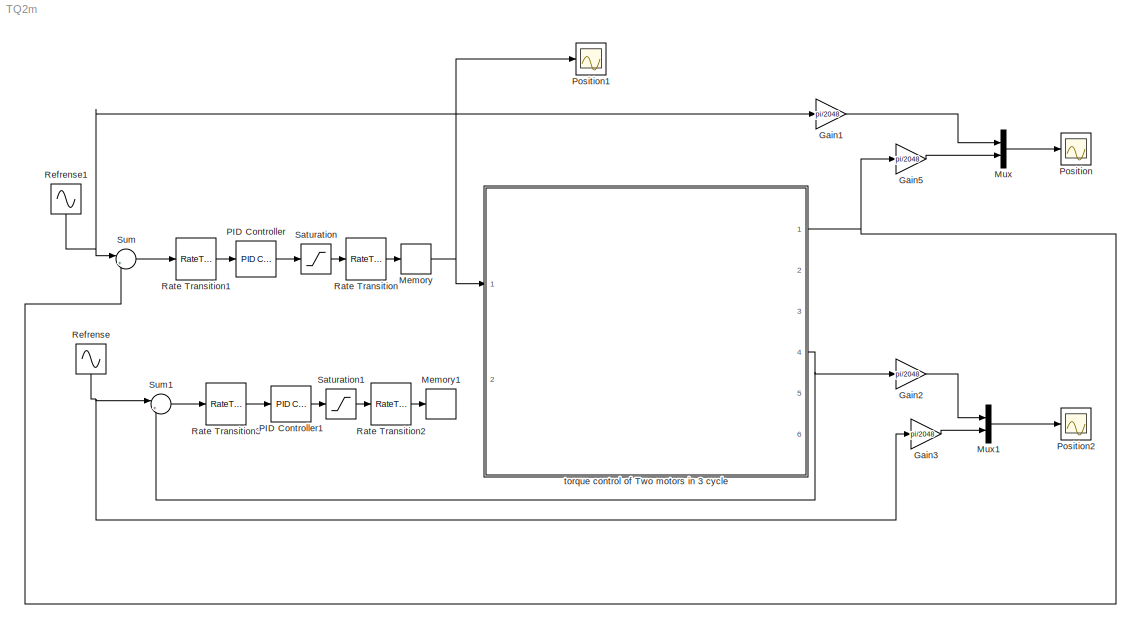
MODEL TQ2m
KIND model
BLOCK [Gain] Gain1
  Gain = pi/2048
  OutDataTypeStr = Inherit: Inherit via internal rule
  ParamDataTypeStr = Inherit: Inherit via internal rule
  SID = 82
  SaturateOnIntegerOverflow = off
BLOCK [Gain] Gain2
  Gain = pi/2048
  OutDataTypeStr = Inherit: Inherit via internal rule
  ParamDataTypeStr = Inherit: Inherit via internal rule
  SID = 122
  SaturateOnIntegerOverflow = off
BLOCK [Gain] Gain3
  Gain = pi/2048
  OutDataTypeStr = Inherit: Inherit via internal rule
  ParamDataTypeStr = Inherit: Inherit via internal rule
  SID = 83
  SaturateOnIntegerOverflow = off
BLOCK [Gain] Gain5
  Gain = pi/2048
  OutDataTypeStr = Inherit: Inherit via internal rule
  ParamDataTypeStr = Inherit: Inherit via internal rule
  SID = 84
  SaturateOnIntegerOverflow = off
BLOCK [Memory] Memory
  SID = 104
BLOCK [Memory] Memory1
  SID = 105
BLOCK [Mux] Mux
  DisplayOption = bar
  Inputs = 2
  Ports = [2, 1]
  SID = 106
BLOCK [Mux] Mux1
  DisplayOption = bar
  Inputs = 2
  Ports = [2, 1]
  SID = 107
BLOCK [Reference] PID Controller  REF=simulink/Continuous/PID Controller
  AntiWindupMode = none
  Controller = PID
  D = 0.00005
  DOutDataTypeStr = Inherit: Inherit via internal rule
  DOutMax = []
  DOutMin = []
  DParamDataTypeStr = Inherit: Inherit via internal rule
  DParamMax = []
  DParamMin = []
  ExternalReset = none
  FilterContinuousStateAttributes = ''
  FilterMethod = Forward Euler
  FilterOutDataTypeStr = Inherit: Inherit via internal rule
  FilterOutMax = []
  FilterOutMin = []
  FilterRTWStateStorageClass = Auto
  FilterStateMustResolveToSignalObject = off
  Form = Parallel
  I = 0.01
  IOutDataTypeStr = Inherit: Inherit via internal rule
  IOutMax = []
  IOutMin = []
  IParamDataTypeStr = Inherit: Inherit via internal rule
  IParamMax = []
  IParamMin = []
  IgnoreLimit = off
  InitialConditionForFilter = 0
  InitialConditionForIntegrator = 0
  InitialConditionSource = internal
  IntegratorContinuousStateAttributes = ''
  IntegratorMethod = Forward Euler
  IntegratorOutDataTypeStr = Inherit: Inherit via internal rule
  IntegratorOutMax = []
  IntegratorOutMin = []
  IntegratorRTWStateStorageClass = Auto
  IntegratorStateMustResolveToSignalObject = off
  Kb = 1
  KbOutDataTypeStr = Inherit: Inherit via internal rule
  KbOutMax = []
  KbOutMin = []
  KbParamDataTypeStr = Inherit: Inherit via internal rule
  KbParamMax = []
  KbParamMin = []
  Kt = 1
  KtOutDataTypeStr = Inherit: Inherit via internal rule
  KtOutMax = []
  KtOutMin = []
  KtParamDataTypeStr = Inherit: Inherit via internal rule
  KtParamMax = []
  KtParamMin = []
  LimitOutput = off
  LinearizeAsGain = on
  LockScale = off
  LowerSaturationLimit = -inf
  N = 100
  NOutDataTypeStr = Inherit: Inherit via internal rule
  NOutMax = []
  NOutMin = []
  NParamDataTypeStr = Inherit: Inherit via internal rule
  NParamMax = []
  NParamMin = []
  P = 0.002
  POutDataTypeStr = Inherit: Inherit via internal rule
  POutMax = []
  POutMin = []
  PParamDataTypeStr = Inherit: Inherit via internal rule
  PParamMax = []
  PParamMin = []
  Ports = [1, 1]
  RndMeth = Floor
  SID = 108
  SampleTime = 0.01
  SaturateOnIntegerOverflow = off
  SaturationOutDataTypeStr = Inherit: Same as input
  SaturationOutMax = []
  SaturationOutMin = []
  SourceBlock = simulink/Continuous/PID Controller
  SourceType = PID 1dof
  SumAccumDataTypeStr = Inherit: Inherit via internal rule
  SumDAccumDataTypeStr = Inherit: Inherit via internal rule
  SumDOutDataTypeStr = Inherit: Inherit via internal rule
  SumDOutMax = []
  SumDOutMin = []
  SumI1AccumDataTypeStr = Inherit: Inherit via internal rule
  SumI1OutDataTypeStr = Inherit: Inherit via internal rule
  SumI1OutMax = []
  SumI1OutMin = []
  SumI2AccumDataTypeStr = Inherit: Inherit via internal rule
  SumI2OutDataTypeStr = Inherit: Inherit via internal rule
  SumI2OutMax = []
  SumI2OutMin = []
  SumI3AccumDataTypeStr = Inherit: Inherit via internal rule
  SumI3OutDataTypeStr = Inherit: Inherit via internal rule
  SumI3OutMax = []
  SumI3OutMin = []
  SumOutDataTypeStr = Inherit: Inherit via internal rule
  SumOutMax = []
  SumOutMin = []
  TimeDomain = Discrete-time
  TrackingMode = off
  UpperSaturationLimit = inf
  ZeroCross = on
BLOCK [Reference] PID Controller1  REF=simulink/Continuous/PID Controller
  AntiWindupMode = none
  Controller = PID
  D = 0.00005
  DOutDataTypeStr = Inherit: Inherit via internal rule
  DOutMax = []
  DOutMin = []
  DParamDataTypeStr = Inherit: Inherit via internal rule
  DParamMax = []
  DParamMin = []
  ExternalReset = none
  FilterContinuousStateAttributes = ''
  FilterMethod = Forward Euler
  FilterOutDataTypeStr = Inherit: Inherit via internal rule
  FilterOutMax = []
  FilterOutMin = []
  FilterRTWStateStorageClass = Auto
  FilterStateMustResolveToSignalObject = off
  Form = Parallel
  I = 0.01
  IOutDataTypeStr = Inherit: Inherit via internal rule
  IOutMax = []
  IOutMin = []
  IParamDataTypeStr = Inherit: Inherit via internal rule
  IParamMax = []
  IParamMin = []
  IgnoreLimit = off
  InitialConditionForFilter = 0
  InitialConditionForIntegrator = 0
  InitialConditionSource = internal
  IntegratorContinuousStateAttributes = ''
  IntegratorMethod = Forward Euler
  IntegratorOutDataTypeStr = Inherit: Inherit via internal rule
  IntegratorOutMax = []
  IntegratorOutMin = []
  IntegratorRTWStateStorageClass = Auto
  IntegratorStateMustResolveToSignalObject = off
  Kb = 1
  KbOutDataTypeStr = Inherit: Inherit via internal rule
  KbOutMax = []
  KbOutMin = []
  KbParamDataTypeStr = Inherit: Inherit via internal rule
  KbParamMax = []
  KbParamMin = []
  Kt = 1
  KtOutDataTypeStr = Inherit: Inherit via internal rule
  KtOutMax = []
  KtOutMin = []
  KtParamDataTypeStr = Inherit: Inherit via internal rule
  KtParamMax = []
  KtParamMin = []
  LimitOutput = off
  LinearizeAsGain = on
  LockScale = off
  LowerSaturationLimit = -inf
  N = 100
  NOutDataTypeStr = Inherit: Inherit via internal rule
  NOutMax = []
  NOutMin = []
  NParamDataTypeStr = Inherit: Inherit via internal rule
  NParamMax = []
  NParamMin = []
  P = 0.002
  POutDataTypeStr = Inherit: Inherit via internal rule
  POutMax = []
  POutMin = []
  PParamDataTypeStr = Inherit: Inherit via internal rule
  PParamMax = []
  PParamMin = []
  Ports = [1, 1]
  RndMeth = Floor
  SID = 109
  SampleTime = 0.01
  SaturateOnIntegerOverflow = off
  SaturationOutDataTypeStr = Inherit: Same as input
  SaturationOutMax = []
  SaturationOutMin = []
  SourceBlock = simulink/Continuous/PID Controller
  SourceType = PID 1dof
  SumAccumDataTypeStr = Inherit: Inherit via internal rule
  SumDAccumDataTypeStr = Inherit: Inherit via internal rule
  SumDOutDataTypeStr = Inherit: Inherit via internal rule
  SumDOutMax = []
  SumDOutMin = []
  SumI1AccumDataTypeStr = Inherit: Inherit via internal rule
  SumI1OutDataTypeStr = Inherit: Inherit via internal rule
  SumI1OutMax = []
  SumI1OutMin = []
  SumI2AccumDataTypeStr = Inherit: Inherit via internal rule
  SumI2OutDataTypeStr = Inherit: Inherit via internal rule
  SumI2OutMax = []
  SumI2OutMin = []
  SumI3AccumDataTypeStr = Inherit: Inherit via internal rule
  SumI3OutDataTypeStr = Inherit: Inherit via internal rule
  SumI3OutMax = []
  SumI3OutMin = []
  SumOutDataTypeStr = Inherit: Inherit via internal rule
  SumOutMax = []
  SumOutMin = []
  TimeDomain = Discrete-time
  TrackingMode = off
  UpperSaturationLimit = inf
  ZeroCross = on
BLOCK [Scope] Position
  DataFormat = StructureWithTime
  Floating = off
  NumInputPorts = 1
  Ports = [1]
  SID = 110
  SampleTime = 0
  SaveName = ScopeData5
  ShowLegends = off
  TimeRange = 10
  YMax = 3.9
  YMin = 2.2
  ZoomMode = yonly
BLOCK [Scope] Position1
  DataFormat = StructureWithTime
  Floating = off
  NumInputPorts = 1
  Ports = [1]
  SID = 123
  SampleTime = 0
  ShowLegends = off
  TimeRange = 10
  YMax = 0.25
  YMin = -0.3
  ZoomMode = yonly
BLOCK [Scope] Position2
  DataFormat = StructureWithTime
  Floating = off
  NumInputPorts = 1
  Ports = [1]
  SID = 111
  SampleTime = 0
  SaveName = ScopeData9
  ShowLegends = off
  TimeRange = 10
  YMax = 3.9
  YMin = 2.3
  ZoomMode = xonly
BLOCK [RateTransition] Rate Transition
  SID = 112
BLOCK [RateTransition] Rate Transition1
  OutPortSampleTime = 0.01
  SID = 113
BLOCK [RateTransition] Rate Transition2
  SID = 114
BLOCK [RateTransition] Rate Transition3
  OutPortSampleTime = 0.01
  SID = 115
BLOCK [Sin] Refrense
  Amplitude = 500
  Bias = 2000
  Frequency = 1.5
  Ports = [0, 1]
  SID = 116
BLOCK [Sin] Refrense1
  Amplitude = 500
  Bias = 2000
  Frequency = 1.5
  Ports = [0, 1]
  SID = 117
BLOCK [Saturate] Saturation
  InputPortMap = u0
  LowerLimit = -6
  Ports = [1, 1]
  SID = 118
  UpperLimit = 6
BLOCK [Saturate] Saturation1
  InputPortMap = u0
  LowerLimit = -6
  Ports = [1, 1]
  SID = 119
  UpperLimit = 6
BLOCK [Sum] Sum
  IconShape = round
  InputSameDT = off
  Inputs = |+-
  OutDataTypeStr = Inherit: Inherit via internal rule
  Ports = [2, 1]
  SID = 120
  SaturateOnIntegerOverflow = off
BLOCK [Sum] Sum1
  IconShape = round
  InputSameDT = off
  Inputs = |+-
  OutDataTypeStr = Inherit: Inherit via internal rule
  Ports = [2, 1]
  SID = 121
  SaturateOnIntegerOverflow = off
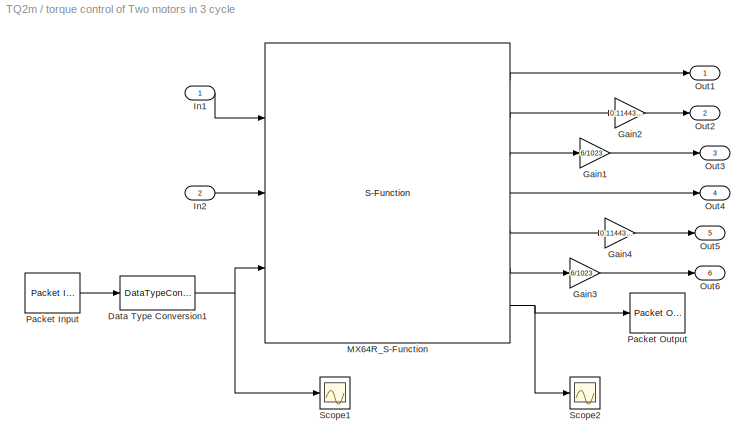
BLOCK [SubSystem] torque control of Two motors in 3 cycle
  FunctionWithSeparateData = off
  MaskHideContents = off
  MinAlgLoopOccurrences = off
  Opaque = off
  Ports = [2, 6]
  PropExecContextOutsideSubsystem = off
  RTWSystemCode = Auto
  RequestExecContextInheritance = off
  SID = 20
  TreatAsAtomicUnit = on
BLOCK [DataTypeConversion] torque control of Two motors in 3 cycle/Data Type Conversion1
  ConvertRealWorld = Stored Integer (SI)
  OutDataTypeStr = double
  RndMeth = Floor
  SID = 34
  SaturateOnIntegerOverflow = off
BLOCK [Gain] torque control of Two motors in 3 cycle/Gain1
  Gain = 6/1023
  OutDataTypeStr = Inherit: Inherit via internal rule
  ParamDataTypeStr = Inherit: Inherit via internal rule
  SID = 47
  SaturateOnIntegerOverflow = off
BLOCK [Gain] torque control of Two motors in 3 cycle/Gain2
  Gain = 0.11443333
  OutDataTypeStr = Inherit: Inherit via internal rule
  ParamDataTypeStr = Inherit: Inherit via internal rule
  SID = 57
  SaturateOnIntegerOverflow = off
BLOCK [Gain] torque control of Two motors in 3 cycle/Gain3
  Gain = 6/1023
  OutDataTypeStr = Inherit: Inherit via internal rule
  ParamDataTypeStr = Inherit: Inherit via internal rule
  SID = 68
  SaturateOnIntegerOverflow = off
BLOCK [Gain] torque control of Two motors in 3 cycle/Gain4
  Gain = 0.11443333
  OutDataTypeStr = Inherit: Inherit via internal rule
  ParamDataTypeStr = Inherit: Inherit via internal rule
  SID = 69
  SaturateOnIntegerOverflow = off
BLOCK [Inport] torque control of Two motors in 3 cycle/In1
  IconDisplay = Port number
  SID = 22
BLOCK [Inport] torque control of Two motors in 3 cycle/In2
  IconDisplay = Port number
  Port = 2
  SID = 73
BLOCK [S-Function] torque control of Two motors in 3 cycle/MX64R_S-Function
  EnableBusSupport = off
  FunctionName = MX64R_RTW_2motor
  Parameters = p1,p2
  Ports = [3, 7]
  SID = 9
BLOCK [Outport] torque control of Two motors in 3 cycle/Out1
  IconDisplay = Port number
  OutMax = [2*pi]
  OutMin = [0]
  SID = 23
BLOCK [Outport] torque control of Two motors in 3 cycle/Out2
  IconDisplay = Port number
  Port = 2
  SID = 24
BLOCK [Outport] torque control of Two motors in 3 cycle/Out3
  IconDisplay = Port number
  Port = 3
  SID = 39
BLOCK [Outport] torque control of Two motors in 3 cycle/Out4
  IconDisplay = Port number
  OutMax = [2*pi]
  OutMin = [0]
  Port = 4
  SID = 70
BLOCK [Outport] torque control of Two motors in 3 cycle/Out5
  IconDisplay = Port number
  Port = 5
  SID = 71
BLOCK [Outport] torque control of Two motors in 3 cycle/Out6
  IconDisplay = Port number
  Port = 6
  SID = 72
BLOCK [Reference] torque control of Two motors in 3 cycle/Packet Input  REF=rtwinlib/Packet Input
  AttributesFormatString = Standard Devices\\nSerial Port [3h]
  ByteOrder = 1
  DataTypes = '12*uint8'
  DrvAddress = 3
  DrvName = Standard_Devices/Serial_Port
  DrvOptions = [3000000 8 0 0 0 1 0 0]
  MaxMissedTicks = 25
  PacketID = 1
  PacketSize = 12
  Ports = [0, 1]
  SID = 18
  SampleTime = -1
  ShowError = off
  ShowMissedTicks = off
  ShowReady = off
  ShowTimestamp = off
  SourceBlock = rtwinlib/Packet Input
  SourceType = RTWin Packet Input
  YieldWhenWaiting = off
BLOCK [Reference] torque control of Two motors in 3 cycle/Packet Output  REF=rtwinlib/Packet Output
  AttributesFormatString = Standard Devices\\nSerial Port [3h]
  ByteOrder = 1
  DataTypes = '16*uint8'
  DrvAddress = 3
  DrvName = Standard_Devices/Serial_Port
  DrvOptions = [3000000 8 0 0 0 1 0 0]
  FinalValue = []
  InitialValue = []
  MaxMissedTicks = 25
  PacketID = 1
  PacketSize = 16
  Ports = [1]
  SID = 19
  SampleTime = -1
  ShowError = off
  ShowMissedTicks = off
  ShowReady = off
  SourceBlock = rtwinlib/Packet Output
  SourceType = RTWin Packet Output
  YieldWhenWaiting = off
BLOCK [Scope] torque control of Two motors in 3 cycle/Scope1
  DataFormat = StructureWithTime
  Floating = off
  NumInputPorts = 1
  Ports = [1]
  SID = 27
  SampleTime = 0
  SaveName = ScopeData2
  ShowLegends = off
  TimeRange = 10
  YMax = 275
  YMin = 0
  ZoomMode = yonly
BLOCK [Scope] torque control of Two motors in 3 cycle/Scope2
  DataFormat = StructureWithTime
  Floating = off
  NumInputPorts = 1
  Ports = [1]
  SID = 28
  SampleTime = 0
  SaveName = ScopeData3
  ShowLegends = off
  TimeRange = 10
  YMax = 275
  YMin = 0
  ZoomMode = yonly
LINE Gain1:1 -> Mux:1
LINE Gain2:1 -> Mux1:1
LINE Gain3:1 -> Mux1:2
LINE Gain5:1 -> Mux:2
NET Memory:1 -> Position1:1, torque control of Two motors in 3 cycle:1
LINE Mux1:1 -> Position2:1
LINE Mux:1 -> Position:1
LINE PID Controller1:1 -> Saturation1:1
LINE PID Controller:1 -> Saturation:1
LINE Rate Transition1:1 -> PID Controller:1
LINE Rate Transition2:1 -> Memory1:1
LINE Rate Transition3:1 -> PID Controller1:1
LINE Rate Transition:1 -> Memory:1
NET Refrense1:1 -> Gain1:1, Sum:1
NET Refrense:1 -> Gain3:1, Sum1:1
LINE Saturation1:1 -> Rate Transition2:1
LINE Saturation:1 -> Rate Transition:1
LINE Sum1:1 -> Rate Transition3:1
LINE Sum:1 -> Rate Transition1:1
NET torque control of Two motors in 3 cycle/Data Type Conversion1:1 -> torque control of Two motors in 3 cycle/MX64R_S-Function:3, torque control of Two motors in 3 cycle/Scope1:1
LINE torque control of Two motors in 3 cycle/Gain1:1 -> torque control of Two motors in 3 cycle/Out3:1
LINE torque control of Two motors in 3 cycle/Gain2:1 -> torque control of Two motors in 3 cycle/Out2:1
LINE torque control of Two motors in 3 cycle/Gain3:1 -> torque control of Two motors in 3 cycle/Out6:1
LINE torque control of Two motors in 3 cycle/Gain4:1 -> torque control of Two motors in 3 cycle/Out5:1
LINE torque control of Two motors in 3 cycle/In1:1 -> torque control of Two motors in 3 cycle/MX64R_S-Function:1
LINE torque control of Two motors in 3 cycle/In2:1 -> torque control of Two motors in 3 cycle/MX64R_S-Function:2
LINE torque control of Two motors in 3 cycle/MX64R_S-Function:1 -> torque control of Two motors in 3 cycle/Out1:1
LINE torque control of Two motors in 3 cycle/MX64R_S-Function:2 -> torque control of Two motors in 3 cycle/Gain2:1
LINE torque control of Two motors in 3 cycle/MX64R_S-Function:3 -> torque control of Two motors in 3 cycle/Gain1:1
LINE torque control of Two motors in 3 cycle/MX64R_S-Function:4 -> torque control of Two motors in 3 cycle/Out4:1
LINE torque control of Two motors in 3 cycle/MX64R_S-Function:5 -> torque control of Two motors in 3 cycle/Gain4:1
LINE torque control of Two motors in 3 cycle/MX64R_S-Function:6 -> torque control of Two motors in 3 cycle/Gain3:1
NET torque control of Two motors in 3 cycle/MX64R_S-Function:7 -> torque control of Two motors in 3 cycle/Packet Output:1, torque control of Two motors in 3 cycle/Scope2:1
LINE torque control of Two motors in 3 cycle/Packet Input:1 -> torque control of Two motors in 3 cycle/Data Type Conversion1:1
NET torque control of Two motors in 3 cycle:1 -> Gain5:1, Sum:2
NET torque control of Two motors in 3 cycle:4 -> Gain2:1, Sum1:2
note: NET lines group one-source signal fan-out (src -> all destinations, sorted); 1:1 wires keep LINE
